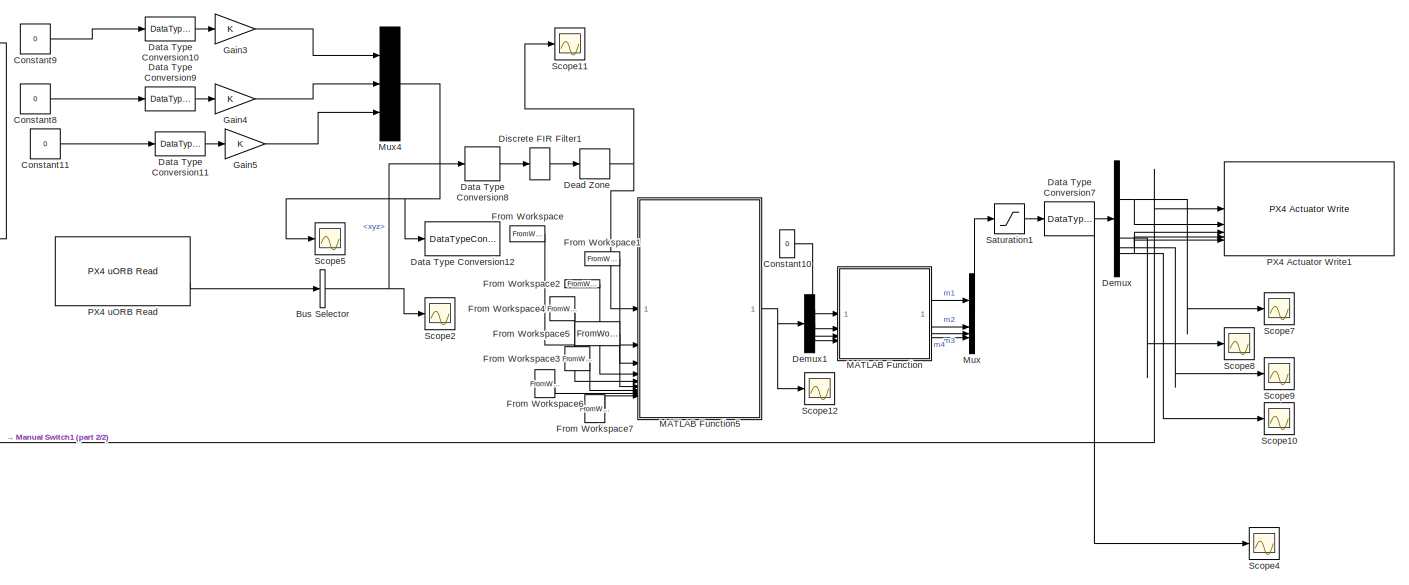
[diagram: root canvas - part 1/2, most of the canvas]
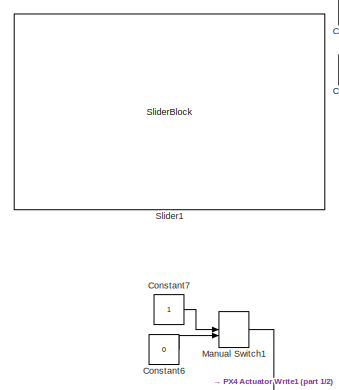
[diagram: root canvas - part 2/2, middle left region]
MODEL slx_0976ac3201d9
KIND model
CONFIG AbsTol = auto
CONFIG EnableMultiTasking = on
CONFIG FixedStep = 0.015
CONFIG MaxStep = auto
CONFIG MinStep = auto
CONFIG RelTol = 1e-3
CONFIG SampleTimeConstraint = Unconstrained
CONFIG SolverName = FixedStepAuto
CONFIG StartTime = 0.0
CONFIG StopTime = inf
BLOCK [BusSelector] Bus Selector
  OutputSignals = xyz
BLOCK [Constant] Constant10
  Value = 0
BLOCK [Constant] Constant11
  Commented = on
  Value = 0
BLOCK [Constant] Constant6
  OutDataTypeStr = boolean
  Value = 0
BLOCK [Constant] Constant7
  OutDataTypeStr = boolean
BLOCK [Constant] Constant8
  Commented = on
  Value = 0
BLOCK [Constant] Constant9
  Commented = on
  Value = 0
BLOCK [DataTypeConversion] Data Type Conversion10
  Commented = on
  OutDataTypeStr = single
  RndMeth = Floor
  SaturateOnIntegerOverflow = off
BLOCK [DataTypeConversion] Data Type Conversion11
  Commented = on
  OutDataTypeStr = single
  RndMeth = Floor
  SaturateOnIntegerOverflow = off
BLOCK [DataTypeConversion] Data Type Conversion12
  Commented = on
  LockScale = on
  OutDataTypeStr = double
  RndMeth = Floor
  SaturateOnIntegerOverflow = off
BLOCK [DataTypeConversion] Data Type Conversion7
  OutDataTypeStr = single
  RndMeth = Floor
  SaturateOnIntegerOverflow = off
BLOCK [DataTypeConversion] Data Type Conversion8
  LockScale = on
  OutDataTypeStr = double
  RndMeth = Floor
  SaturateOnIntegerOverflow = off
BLOCK [DataTypeConversion] Data Type Conversion9
  Commented = on
  OutDataTypeStr = single
  RndMeth = Floor
  SaturateOnIntegerOverflow = off
BLOCK [DeadZone] Dead Zone
  LowerValue = -0.025
  UpperValue = 0.025
BLOCK [Demux] Demux
BLOCK [Demux] Demux1
  Outputs = 3
BLOCK [DiscreteFir] Discrete FIR Filter1
  Coefficients = [0.2 0.2 0.2 0.2 0.2]
  InputPortMap = u0
  OutputPortMap = o0
BLOCK [FromWorkspace] From Workspace
  VariableName = H
BLOCK [FromWorkspace] From Workspace1
  VariableName = F
BLOCK [FromWorkspace] From Workspace2
  VariableName = Qvec
BLOCK [FromWorkspace] From Workspace3
  VariableName = qc
BLOCK [FromWorkspace] From Workspace4
  VariableName = G
BLOCK [FromWorkspace] From Workspace5
  VariableName = Pc
BLOCK [FromWorkspace] From Workspace6
  VariableName = Sc
BLOCK [FromWorkspace] From Workspace7
  VariableName = m
BLOCK [Gain] Gain3
  Commented = on
BLOCK [Gain] Gain4
  Commented = on
BLOCK [Gain] Gain5
  Commented = on
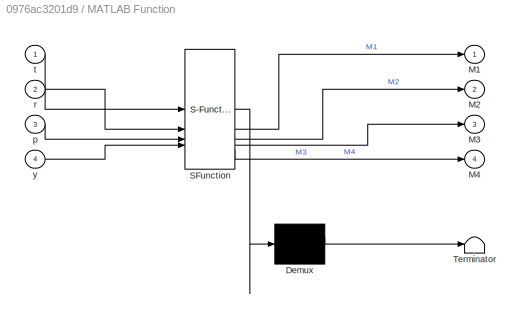
BLOCK [SubSystem] MATLAB Function
  ErrorFcn = Stateflow.Translate.translate
  PermitHierarchicalResolution = ExplicitOnly
  SFBlockType = MATLAB Function
  TreatAsAtomicUnit = on
BLOCK [Demux] MATLAB Function/ Demux 
  Outputs = 1
BLOCK [S-Function] MATLAB Function/ SFunction 
  EnableBusSupport = off
  FunctionName = sf_sfun
  PortCounts = [4 5]
  SFcnIsStateOwnerBlock = off
  SFunctionDeploymentMode = off
  Tag = Stateflow S-Function 2
BLOCK [Terminator] MATLAB Function/ Terminator 
BLOCK [Outport] MATLAB Function/M1
  VectorParamsAs1DForOutWhenUnconnected = off
BLOCK [Outport] MATLAB Function/M2
  Port = 2
BLOCK [Outport] MATLAB Function/M3
  Port = 3
BLOCK [Outport] MATLAB Function/M4
  Port = 4
BLOCK [Inport] MATLAB Function/p
  Port = 3
BLOCK [Inport] MATLAB Function/r
  Port = 2
BLOCK [Inport] MATLAB Function/t
BLOCK [Inport] MATLAB Function/y
  Port = 4
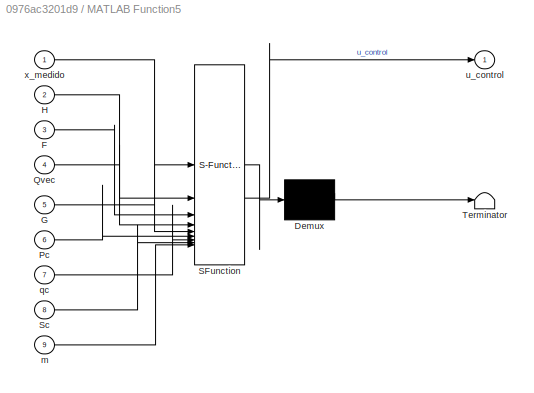
BLOCK [SubSystem] MATLAB Function5
  ErrorFcn = Stateflow.Translate.translate
  PermitHierarchicalResolution = ExplicitOnly
  SFBlockType = MATLAB Function
  TreatAsAtomicUnit = on
BLOCK [Demux] MATLAB Function5/ Demux 
  Outputs = 1
BLOCK [S-Function] MATLAB Function5/ SFunction 
  EnableBusSupport = off
  FunctionName = sf_sfun
  PortCounts = [9 2]
  SFcnIsStateOwnerBlock = off
  SFunctionDeploymentMode = off
  Tag = Stateflow S-Function 6
BLOCK [Terminator] MATLAB Function5/ Terminator 
BLOCK [Inport] MATLAB Function5/F
  Port = 3
BLOCK [Inport] MATLAB Function5/G
  Port = 5
BLOCK [Inport] MATLAB Function5/H
  Port = 2
BLOCK [Inport] MATLAB Function5/Pc
  Port = 6
BLOCK [Inport] MATLAB Function5/Qvec
  Port = 4
BLOCK [Inport] MATLAB Function5/Sc
  Port = 8
BLOCK [Inport] MATLAB Function5/m
  Port = 9
BLOCK [Inport] MATLAB Function5/qc
  Port = 7
BLOCK [Outport] MATLAB Function5/u_control
  VectorParamsAs1DForOutWhenUnconnected = off
BLOCK [Inport] MATLAB Function5/x_medido
BLOCK [ManualSwitch] Manual Switch1
  CurrentSetting = 0
BLOCK [Mux] Mux
  DisplayOption = bar
BLOCK [Mux] Mux4
  Commented = on
  DisplayOption = bar
  Inputs = 3
BLOCK [Reference] PX4 Actuator Write1  REF=px4Peripheralslib/PX4 Actuator Write
  SourceBlock = px4Peripheralslib/PX4 Actuator Write
  SourceType = px4.internal.block.PX4Actuators
BLOCK [Reference] PX4 uORB Read  REF=px4uORBlib/PX4 uORB Read
  SourceBlock = px4uORBlib/PX4 uORB Read
  SourceType = PX4 uORB Read
BLOCK [Saturate] Saturation1
  LowerLimit = 0
  UpperLimit = 1
BLOCK [Scope] Scope10
  ActiveDisplayYMaximum = 0.38798897713422775
  ActiveDisplayYMinimum = -0.043109886348247521
  DataLoggingVariableName = ScopeData10
  Floating = off
  GraphicalSettings = {"Style":{"BackgroundColor":[0.12941176470588237,0.12941176470588237,0.12941176470588237],"AxesColor":[0.07058823529411765,0.07058823529411765,0.07058823529411765],"LabelsColor":[0.8509803921568627,0.8509803921568627,0.8509803921568627],"PreserveColors":false,"Visible":[true],"LineStyle":["-"],"LineWidth":[1.5],"BarWidth":[0.9],"LineColor":["auto"],"LineFaceAlpha":[1],"LineEdgeAlpha":[1],"Marker":...<+2005ch>
  MultipleDisplayCache = [{"MaxYLimMag":0.38798897713422775,"MaxYLimReal":0.38798897713422775,"MinYLimMag":0,"MinYLimReal":-0.043109886348247521,"PlotAsMagnitudePhase":false,"ShowGrid":true,"ShowLegend":false,"Title":"%<SignalLabel>","YLabel":""}]
  NumInputPorts = 1
  ScopeFrameLocation = window
  Visible = on
  WasSavedAsWebScope = on
  WindowPosition = [3150.000000,94.000000,560.000000,420.000000,]
BLOCK [Scope] Scope11
  ActiveDisplayYMaximum = 0.01667695045471191
  ActiveDisplayYMinimum = -0.15009255409240721
  DataLoggingVariableName = ScopeData11
  Floating = off
  GraphicalSettings = {"Style":{"BackgroundColor":[0.12941176470588237,0.12941176470588237,0.12941176470588237],"AxesColor":[0.07058823529411765,0.07058823529411765,0.07058823529411765],"LabelsColor":[0.8509803921568627,0.8509803921568627,0.8509803921568627],"PreserveColors":false,"Visible":[true,true,true],"LineStyle":["-","-","-"],"LineWidth":[1.5,1.5,1.5],"BarWidth":[0.9,0.9,0.9],"LineColor":["auto","auto","auto"],"...<+2149ch>
  MultipleDisplayCache = [{"MaxYLimMag":0.15009255409240721,"MaxYLimReal":0.01667695045471191,"MinYLimMag":0,"MinYLimReal":-0.15009255409240721,"PlotAsMagnitudePhase":false,"ShowGrid":true,"ShowLegend":false,"Title":"%<SignalLabel>","YLabel":""}]
  NumInputPorts = 1
  ScopeFrameLocation = window
  Visible = on
  WasSavedAsWebScope = on
  WindowPosition = [680.000000,330.000000,560.000000,420.000000,]
BLOCK [Scope] Scope12
  ActiveDisplayYMaximum = 1.0153303161323031
  ActiveDisplayYMinimum = -1.0414258708474025
  DataLoggingVariableName = ScopeData12
  Floating = off
  GraphicalSettings = {"AxesScalingProperties":{"AlignXAxis":"Center","AlignYAxis":"Center","AutoScaleXAxisLimits":false,"AxesScaling":"Manual","AxesScalingNumUpdates":10,"ExpandOnly":true,"ScaleAxesLimitsAtStop":false,"XAxisDataRange":100,"YAxisDataRange":80},"DisplayProperties":{"ColorOrder":["auto","auto","auto","auto","auto","auto","auto","auto","auto","auto","auto","auto","auto","auto","auto","auto","auto","auto",...<+2200ch>
  MultipleDisplayCache = [{"MaxYLimMag":1.25,"MaxYLimReal":1.0153303161323031,"MinYLimMag":0,"MinYLimReal":-1.0414258708474025,"PlotAsMagnitudePhase":false,"ShowGrid":true,"ShowLegend":true,"Title":"%<SignalLabel>","YLabel":""}]
  NumInputPorts = 1
  ScopeFrameLocation = window
  ShowLegend = on
  WasSavedAsWebScope = on
  WindowPosition = [680.000000,330.000000,560.000000,420.000000,]
BLOCK [Scope] Scope2
  ActiveDisplayYMaximum = 0.23733546842450437
  ActiveDisplayYMinimum = -0.33577433139146873
  DataLoggingVariableName = ScopeData1
  Floating = off
  GraphicalSettings = {"Style":{"BackgroundColor":[0.12941176470588237,0.12941176470588237,0.12941176470588237],"AxesColor":[0.07058823529411765,0.07058823529411765,0.07058823529411765],"LabelsColor":[0.8509803921568627,0.8509803921568627,0.8509803921568627],"PreserveColors":false,"Visible":[true,true,true],"LineStyle":["-","-","-"],"LineWidth":[1.5,1.5,1.5],"BarWidth":[0.9,0.9,0.9],"LineColor":["auto","auto","auto"],"...<+2232ch>
  MultipleDisplayCache = [{"MaxYLimMag":2.9700079411268234,"MaxYLimReal":0.23733546842450437,"MinYLimMag":0,"MinYLimReal":-0.33577433139146873,"PlotAsMagnitudePhase":false,"ShowGrid":true,"ShowLegend":true,"Title":"%<SignalLabel>","YLabel":""}]
  NumInputPorts = 1
  ScopeFrameLocation = window
  ShowLegend = on
  Visible = on
  WasSavedAsWebScope = on
  WindowPosition = [2493.000000,493.000000,560.000000,420.000000,]
BLOCK [Scope] Scope4
  ActiveDisplayYMaximum = 1.9132041073394161
  ActiveDisplayYMinimum = -1.5029836862276127
  ContainerLayout = {"WindowBounds":[307,28,1296,807]}
  DataLoggingVariableName = ScopeData4
  Floating = off
  GraphicalSettings = {"Style":{"BackgroundColor":[0.12941176470588237,0.12941176470588237,0.12941176470588237],"AxesColor":[0.07058823529411765,0.07058823529411765,0.07058823529411765],"LabelsColor":[0.8509803921568627,0.8509803921568627,0.8509803921568627],"PreserveColors":false,"Visible":[true,true,true,true],"LineStyle":["-","-","-","-"],"LineWidth":[1.5,1.5,1.5,1.5],"BarWidth":[0.9,0.9,0.9,0.9],"LineColor":["auto"...<+2438ch>
  MultipleDisplayCache = [{"MaxYLimMag":10,"MaxYLimReal":1.9132041073394161,"MinYLimMag":0,"MinYLimReal":-1.5029836862276127,"PlotAsMagnitudePhase":false,"ShowGrid":true,"ShowLegend":true,"Title":"%<SignalLabel>","YLabel":""}]
  NumInputPorts = 1
  ScopeFrameLocation = container
  ShowLegend = on
  Visible = on
  WasSavedAsWebScope = on
  WindowPosition = [307.000000,245.000000,1296.000000,807.000000,]
BLOCK [Scope] Scope5
  ActiveDisplayYMaximum = 1
  ActiveDisplayYMinimum = -1
  DataLoggingVariableName = ScopeData5
  Floating = off
  GraphicalSettings = {"Style":{"BackgroundColor":[0.12941176470588237,0.12941176470588237,0.12941176470588237],"AxesColor":[0.07058823529411765,0.07058823529411765,0.07058823529411765],"LabelsColor":[0.8509803921568627,0.8509803921568627,0.8509803921568627],"PreserveColors":false,"Visible":[true,true,true],"LineStyle":["-","-","-"],"LineWidth":[1.5,1.5,1.5],"BarWidth":[0.9,0.9,0.9],"LineColor":["auto","auto","auto"],"...<+2108ch>
  MultipleDisplayCache = [{"MaxYLimMag":1,"MaxYLimReal":1,"MinYLimMag":0,"MinYLimReal":-1,"PlotAsMagnitudePhase":false,"ShowGrid":true,"ShowLegend":false,"Title":"%<SignalLabel>","YLabel":""}]
  NumInputPorts = 1
  ScopeFrameLocation = window
  WasSavedAsWebScope = on
  WindowPosition = [680.000000,330.000000,560.000000,420.000000,]
BLOCK [Scope] Scope7
  ActiveDisplayYMaximum = 0.69074354134500027
  ActiveDisplayYMinimum = 0.089401463046669974
  DataLoggingVariableName = ScopeData7
  Floating = off
  GraphicalSettings = {"Style":{"BackgroundColor":[0.12941176470588237,0.12941176470588237,0.12941176470588237],"AxesColor":[0.07058823529411765,0.07058823529411765,0.07058823529411765],"LabelsColor":[0.8509803921568627,0.8509803921568627,0.8509803921568627],"PreserveColors":false,"Visible":[true],"LineStyle":["-"],"LineWidth":[1.5],"BarWidth":[0.9],"LineColor":["auto"],"LineFaceAlpha":[1],"LineEdgeAlpha":[1],"Marker":...<+2035ch>
  MultipleDisplayCache = [{"MaxYLimMag":0.69074354134500027,"MaxYLimReal":0.69074354134500027,"MinYLimMag":0.089401463046669974,"MinYLimReal":0.089401463046669974,"PlotAsMagnitudePhase":false,"ShowGrid":true,"ShowLegend":false,"Title":"%<SignalLabel>","YLabel":""}]
  NumInputPorts = 1
  ScopeFrameLocation = window
  Visible = on
  WasSavedAsWebScope = on
  WindowPosition = [3084.000000,560.000000,560.000000,420.000000,]
BLOCK [Scope] Scope8
  ActiveDisplayYMaximum = 0.76553872250951827
  ActiveDisplayYMinimum = -0.075780542800202952
  DataLoggingVariableName = ScopeData8
  Floating = off
  GraphicalSettings = {"Style":{"BackgroundColor":[0.12941176470588237,0.12941176470588237,0.12941176470588237],"AxesColor":[0.07058823529411765,0.07058823529411765,0.07058823529411765],"LabelsColor":[0.8509803921568627,0.8509803921568627,0.8509803921568627],"PreserveColors":false,"Visible":[true],"LineStyle":["-"],"LineWidth":[1.5],"BarWidth":[0.9],"LineColor":["auto"],"LineFaceAlpha":[1],"LineEdgeAlpha":[1],"Marker":...<+2001ch>
  MultipleDisplayCache = [{"MaxYLimMag":0.76553872250951827,"MaxYLimReal":0.76553872250951827,"MinYLimMag":0,"MinYLimReal":-0.075780542800202952,"PlotAsMagnitudePhase":false,"ShowGrid":true,"ShowLegend":false,"Title":"%<SignalLabel>","YLabel":""}]
  NumInputPorts = 1
  ScopeFrameLocation = window
  Visible = on
  WasSavedAsWebScope = on
  WindowPosition = [2314.000000,56.000000,560.000000,420.000000,]
BLOCK [Scope] Scope9
  ActiveDisplayYMaximum = 0.944020101800561
  ActiveDisplayYMinimum = 0.00290558300912383
  DataLoggingVariableName = ScopeData9
  Floating = off
  GraphicalSettings = {"Style":{"BackgroundColor":[0.12941176470588237,0.12941176470588237,0.12941176470588237],"AxesColor":[0.07058823529411765,0.07058823529411765,0.07058823529411765],"LabelsColor":[0.8509803921568627,0.8509803921568627,0.8509803921568627],"PreserveColors":false,"Visible":[true],"LineStyle":["-"],"LineWidth":[1.5],"BarWidth":[0.9],"LineColor":["auto"],"LineFaceAlpha":[1],"LineEdgeAlpha":[1],"Marker":...<+2031ch>
  MultipleDisplayCache = [{"MaxYLimMag":0.944020101800561,"MaxYLimReal":0.944020101800561,"MinYLimMag":0.00290558300912383,"MinYLimReal":0.00290558300912383,"PlotAsMagnitudePhase":false,"ShowGrid":true,"ShowLegend":false,"Title":"%<SignalLabel>","YLabel":""}]
  NumInputPorts = 1
  ScopeFrameLocation = window
  Visible = on
  WasSavedAsWebScope = on
  WindowPosition = [2323.000000,549.000000,560.000000,420.000000,]
BLOCK [SliderBlock] Slider1
  ScaleMax = 0.6
NET Bus Selector:1 -> Data Type Conversion8:1, Scope2:1
LINE Constant10:1 -> MATLAB Function:1
LINE Constant11:1 -> Data Type Conversion11:1
LINE Constant6:1 -> Manual Switch1:2
LINE Constant7:1 -> Manual Switch1:1
LINE Constant8:1 -> Data Type Conversion9:1
LINE Constant9:1 -> Data Type Conversion10:1
LINE Data Type Conversion10:1 -> Gain3:1
LINE Data Type Conversion11:1 -> Gain5:1
NET Data Type Conversion7:1 -> Demux:1, Scope4:1
LINE Data Type Conversion8:1 -> Discrete FIR Filter1:1
LINE Data Type Conversion9:1 -> Gain4:1
NET Dead Zone:1 -> MATLAB Function5:1, Scope11:1
LINE Demux1:1 -> MATLAB Function:2
LINE Demux1:2 -> MATLAB Function:3
LINE Demux1:3 -> MATLAB Function:4
NET Demux:1 -> PX4 Actuator Write1:2, Scope7:1
NET Demux:2 -> PX4 Actuator Write1:3, Scope8:1
NET Demux:3 -> PX4 Actuator Write1:4, Scope9:1
NET Demux:4 -> PX4 Actuator Write1:5, Scope10:1
LINE Discrete FIR Filter1:1 -> Dead Zone:1
LINE From Workspace1:1 -> MATLAB Function5:3
LINE From Workspace2:1 -> MATLAB Function5:4
LINE From Workspace3:1 -> MATLAB Function5:7
LINE From Workspace4:1 -> MATLAB Function5:5
LINE From Workspace5:1 -> MATLAB Function5:6
LINE From Workspace6:1 -> MATLAB Function5:8
LINE From Workspace7:1 -> MATLAB Function5:9
LINE From Workspace:1 -> MATLAB Function5:2
LINE Gain3:1 -> Mux4:1
LINE Gain4:1 -> Mux4:2
LINE Gain5:1 -> Mux4:3
NET MATLAB Function5:1 -> Demux1:1, Scope12:1
LINE MATLAB Function:1 -> Mux:1
LINE MATLAB Function:2 -> Mux:2
LINE MATLAB Function:3 -> Mux:3
LINE MATLAB Function:4 -> Mux:4
LINE Manual Switch1:1 -> PX4 Actuator Write1:1
NET Mux4:1 -> Data Type Conversion12:1, Scope5:1
LINE Mux:1 -> Saturation1:1
LINE PX4 uORB Read:2 -> Bus Selector:1
LINE Saturation1:1 -> Data Type Conversion7:1
note: NET lines group one-source signal fan-out (src -> all destinations, sorted); 1:1 wires keep LINE
CHART MATLAB Function states=1 transitions=1
  STATE_LABEL 'eML_blk_kernel()'
  STATE_LABEL 'SCRIPT:\nfunction [M1,M2,M3,M4] = fcn(t, r, p, y)\n% t: thrust\n% r: roll\n% p: pitch\n% y: yaw\n\nM1 = t - 0.707107*r - 0.707107*p + y;\nM2 = t + 0.707107*r + 0.707107*p + y;\nM3 = t + 0.707107*r - 0.707107*p - y;\nM4 = t - 0.707107*r + 0.707107*p - y;'
CHART MATLAB Function5 states=1 transitions=1
  STATE_LABEL 'eML_blk_kernel()'
  STATE_LABEL "SCRIPT:\nfunction u_control = mpc_function(x_medido, H, F, Qvec, G, Pc, qc, Sc, m)\n    % x_medido: Es el estado que entra desde los sensores/planta en Simulink\n    \n    % 1. Definir el vector de costo lineal\n    f = (2 * x_medido' * F' * Qvec * G)';\n    \n    % 2. Resolver la optimización para TODO el horizonte\n    options = optimoptions('quadprog', 'Display', 'off');\n    u_horizonte = quadprog(2*H,...<+207ch>"
CHART  states=0 transitions=0
CHART  states=0 transitions=0
